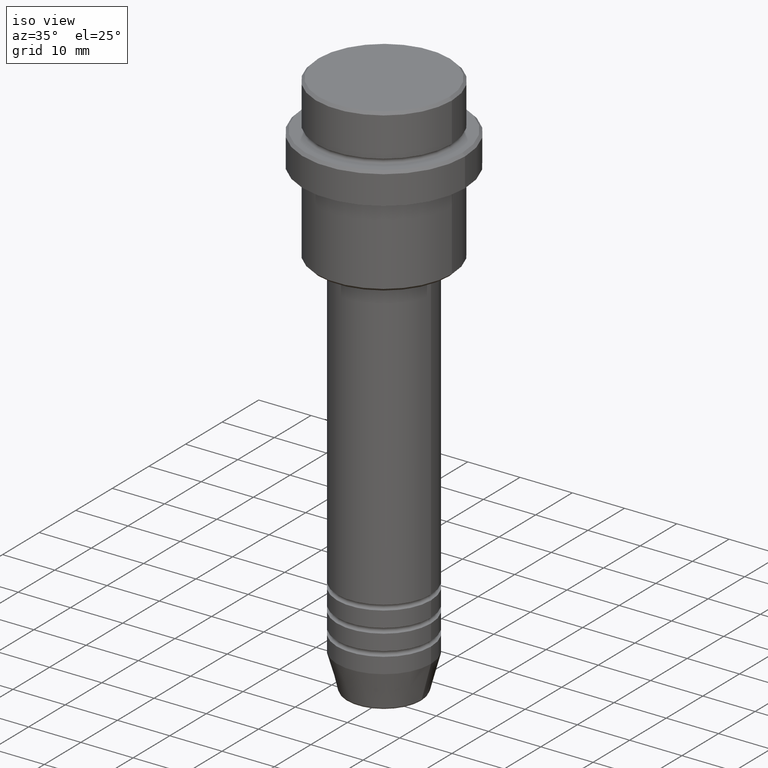
[diagram: clean part render]
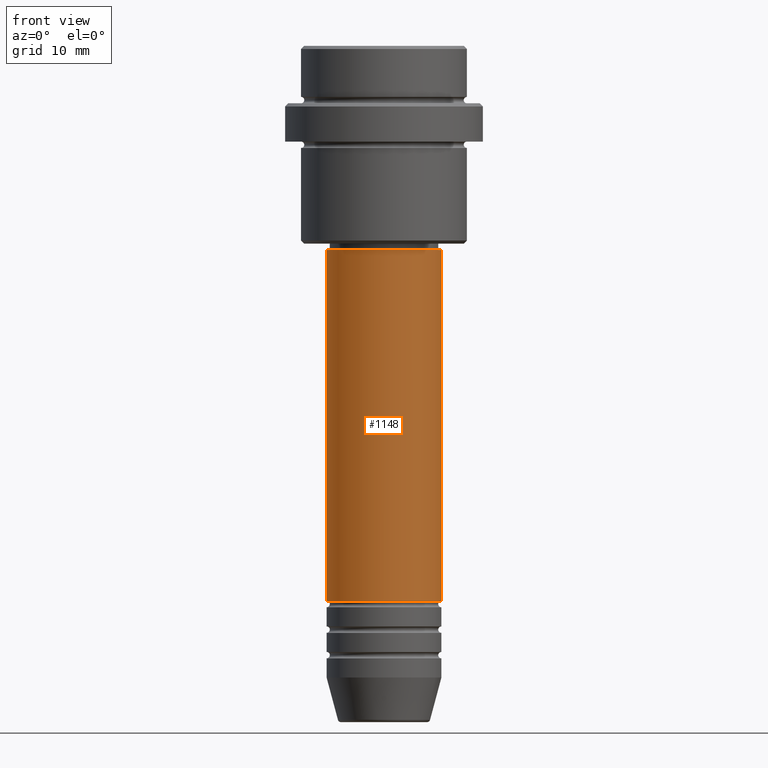
[diagram: tour spotlight — one face highlighted and labeled with its STEP entity id]
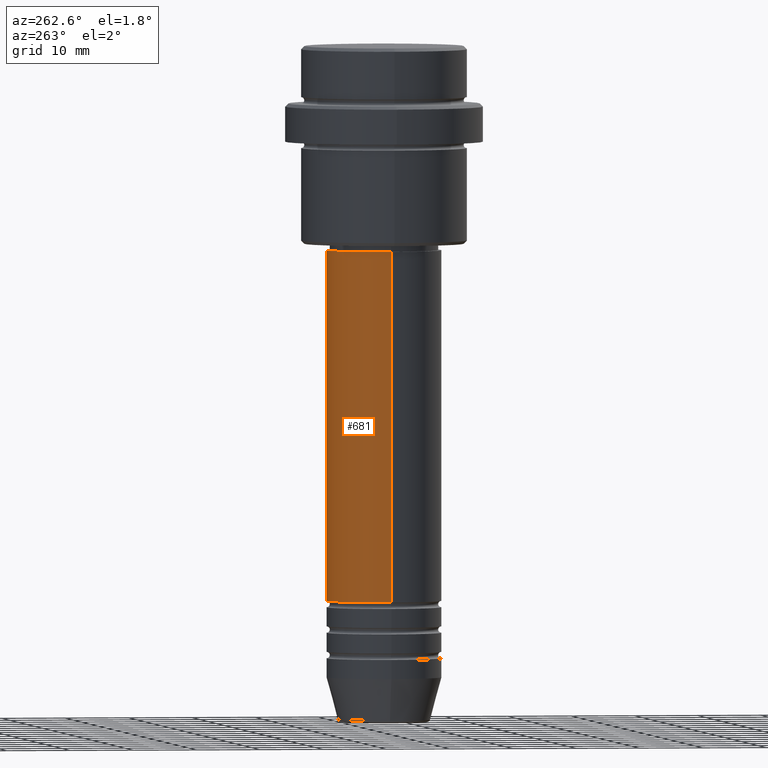
[diagram: tour spotlight — one face highlighted and labeled with its STEP entity id]
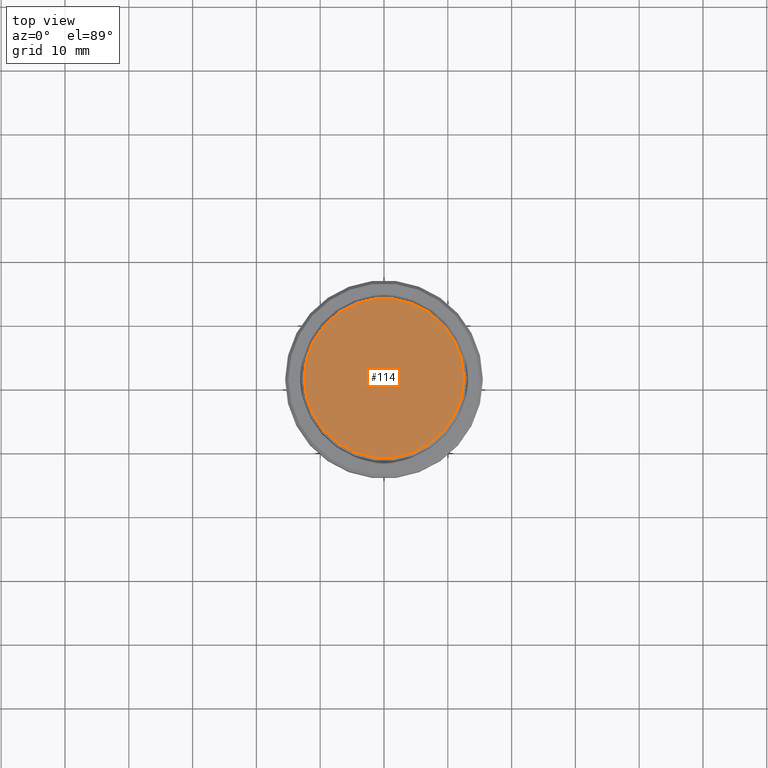
[diagram: tour spotlight — one face highlighted and labeled with its STEP entity id]
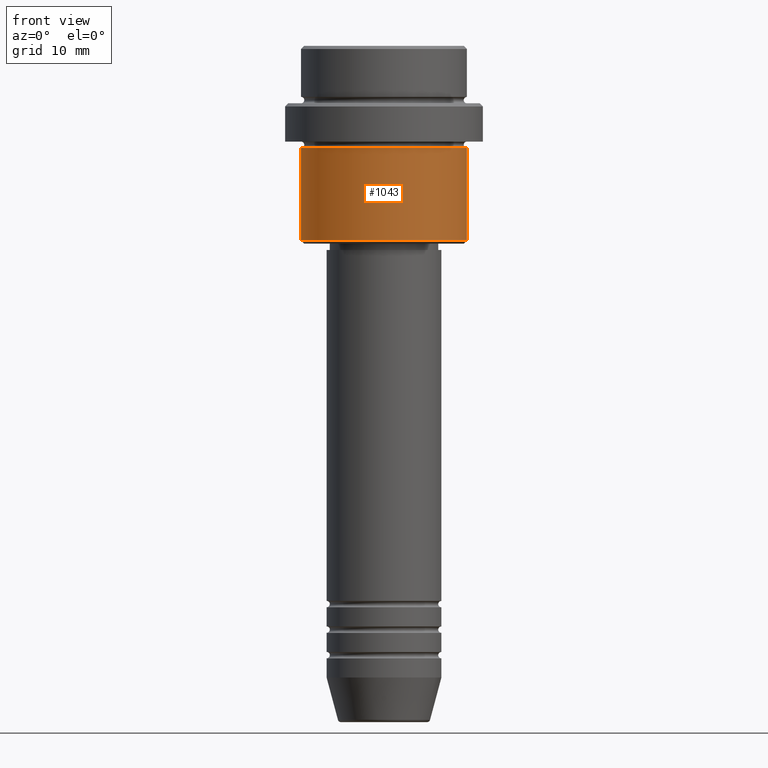
[diagram: tour spotlight — one face highlighted and labeled with its STEP entity id]
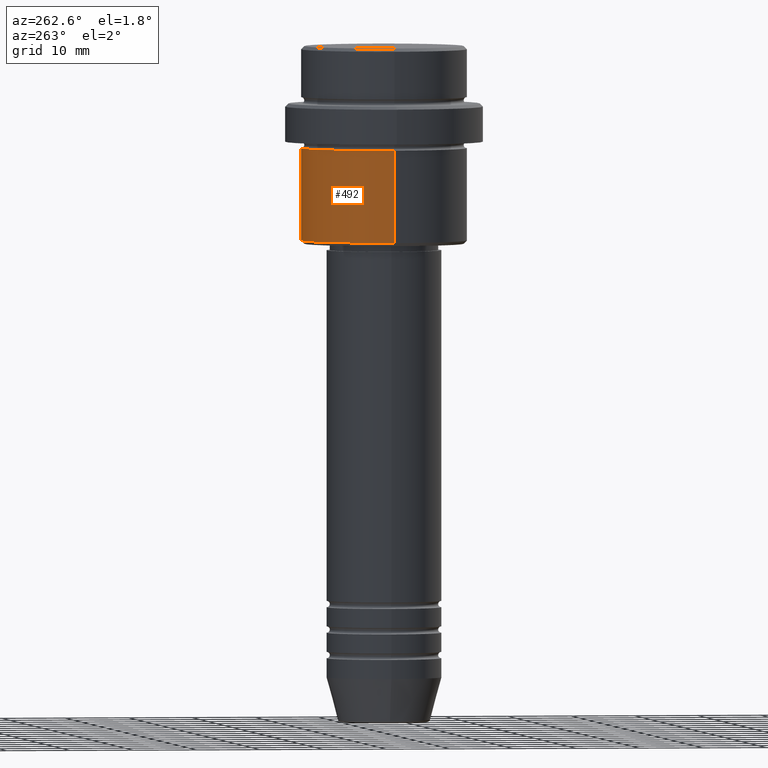
[diagram: tour spotlight — one face highlighted and labeled with its STEP entity id]
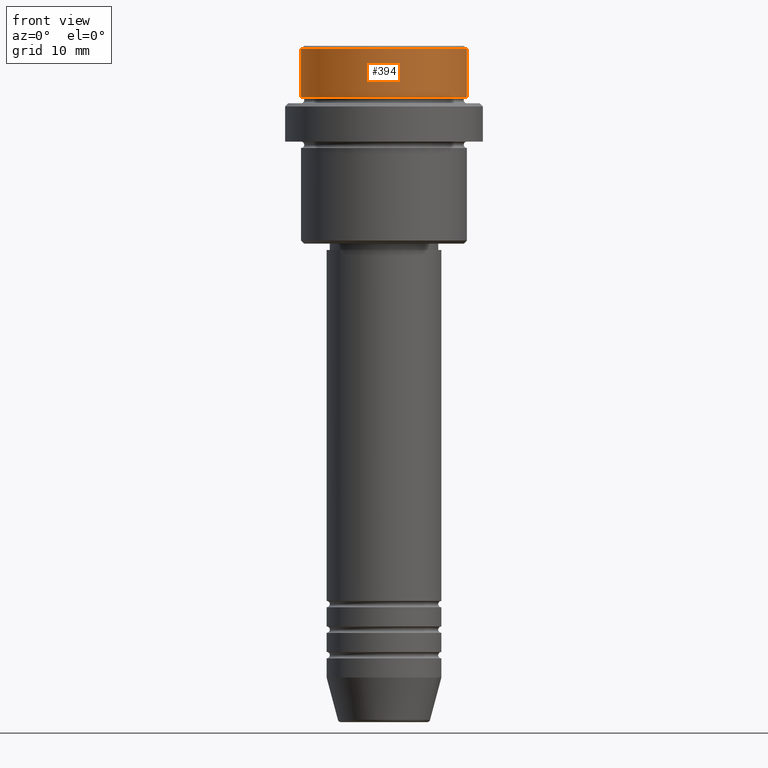
[diagram: tour spotlight — one face highlighted and labeled with its STEP entity id]
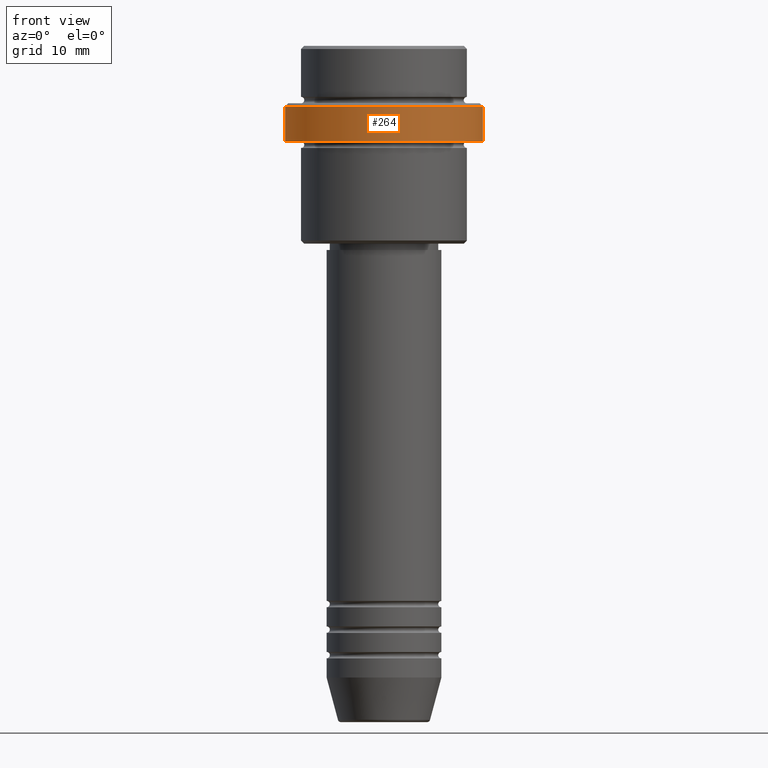
[diagram: tour spotlight — one face highlighted and labeled with its STEP entity id]
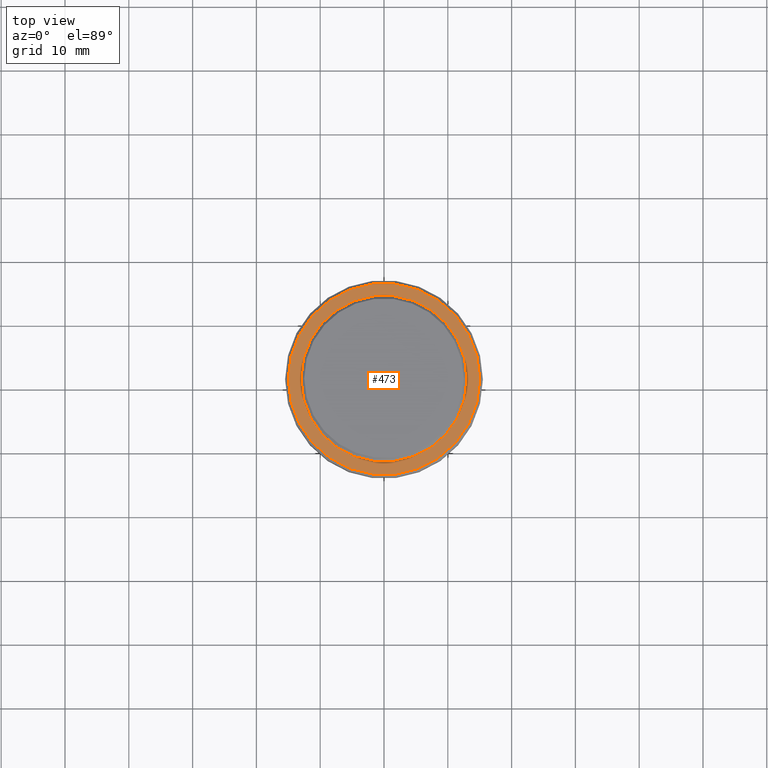
[diagram: tour spotlight — one face highlighted and labeled with its STEP entity id]
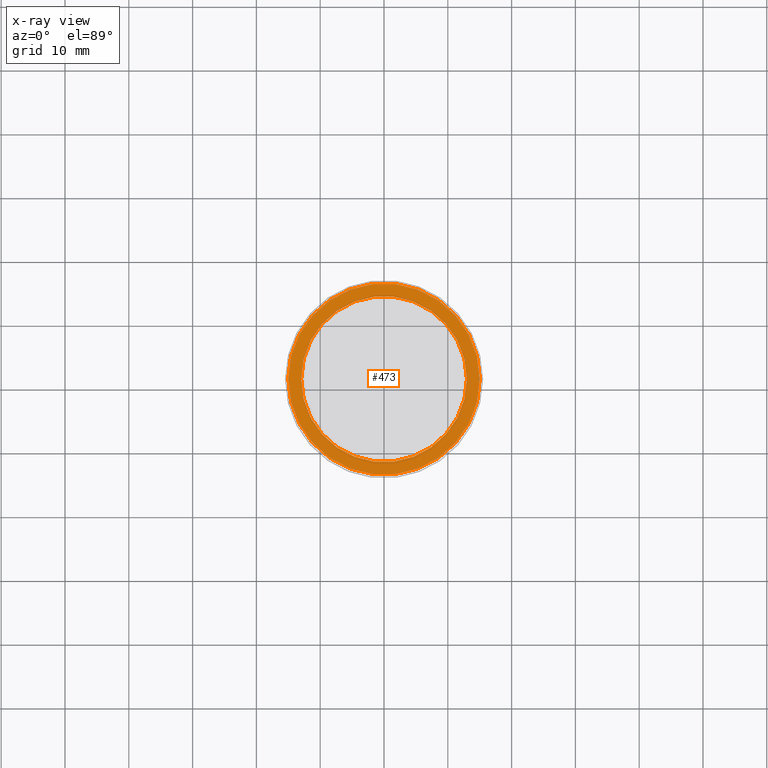
[diagram: x-ray of the same camera — body ghosted, this tour face saturated]
A machine part: a face-by-face anatomy tour. The part has 52 B-rep faces; the first image is the clean iso view, then the 8 largest visible faces are spotlighted one at a time (largest first), each with its STEP entity span.

Face 1 — front view, entity #1148. In plain terms, the highlighted cylindrical surface (partial cylindrical patch) has radius 9 mm, axis along (-0, -0, 1).
Definition (entity closure, byte-faithful):
#37 = EDGE_CURVE ( 'NONE', #289, #1263, #217, .T. ) ;
#52 = DIRECTION ( 'NONE',  ( -0.000000000000000000, -0.000000000000000000, 1.000000000000000000 ) ) ;
#82 = CARTESIAN_POINT ( 'NONE',  ( -9.000000000000001776, 1.102182119232617911E-15, 0.000000000000000000 ) ) ;
#92 = CIRCLE ( 'NONE', #529, 9.000000000000001776 ) ;
#217 = LINE ( 'NONE', #438, #707 ) ;
#227 = CARTESIAN_POINT ( 'NONE',  ( -9.000000000000001776, 1.102182119232617911E-15, -31.99999999999997868 ) ) ;
#274 = FACE_OUTER_BOUND ( 'NONE', #822, .T. ) ;
#289 = VERTEX_POINT ( 'NONE', #523 ) ;
#349 = EDGE_CURVE ( 'NONE', #933, #1263, #92, .T. ) ;
#400 = CARTESIAN_POINT ( 'NONE',  ( 0.000000000000000000, 0.000000000000000000, -86.99999999999988631 ) ) ;
#438 = CARTESIAN_POINT ( 'NONE',  ( 9.000000000000001776, 0.000000000000000000, 0.000000000000000000 ) ) ;
#516 = CYLINDRICAL_SURFACE ( 'NONE', #972, 9.000000000000001776 ) ;
#523 = CARTESIAN_POINT ( 'NONE',  ( 9.000000000000000000, 0.000000000000000000, -86.99999999999988631 ) ) ;
#529 = AXIS2_PLACEMENT_3D ( 'NONE', #857, #828, #960 ) ;
#638 = CARTESIAN_POINT ( 'NONE',  ( 9.000000000000001776, 0.000000000000000000, -31.99999999999997868 ) ) ;
#644 = CIRCLE ( 'NONE', #1318, 9.000000000000000000 ) ;
#666 = DIRECTION ( 'NONE',  ( -0.000000000000000000, -0.000000000000000000, 1.000000000000000000 ) ) ;
#701 = ORIENTED_EDGE ( 'NONE', *, *, #349, .F. ) ;
#707 = VECTOR ( 'NONE', #666, 1000.000000000000000 ) ;
#737 = LINE ( 'NONE', #82, #1173 ) ;
#792 = EDGE_CURVE ( 'NONE', #1093, #933, #737, .T. ) ;
#822 = EDGE_LOOP ( 'NONE', ( #1080, #1195, #1369, #701 ) ) ;
#828 = DIRECTION ( 'NONE',  ( -0.000000000000000000, -0.000000000000000000, 1.000000000000000000 ) ) ;
#842 = DIRECTION ( 'NONE',  ( -0.000000000000000000, -0.000000000000000000, 1.000000000000000000 ) ) ;
#857 = CARTESIAN_POINT ( 'NONE',  ( 0.000000000000000000, 0.000000000000000000, -31.99999999999997868 ) ) ;
#930 = CARTESIAN_POINT ( 'NONE',  ( 0.000000000000000000, 0.000000000000000000, 0.000000000000000000 ) ) ;
#933 = VERTEX_POINT ( 'NONE', #227 ) ;
#960 = DIRECTION ( 'NONE',  ( 1.000000000000000000, 0.000000000000000000, 0.000000000000000000 ) ) ;
#972 = AXIS2_PLACEMENT_3D ( 'NONE', #930, #1168, #1391 ) ;
#1080 = ORIENTED_EDGE ( 'NONE', *, *, #792, .F. ) ;
#1093 = VERTEX_POINT ( 'NONE', #1256 ) ;
#1148 = ADVANCED_FACE ( 'NONE', ( #274 ), #516, .T. ) ;
#1168 = DIRECTION ( 'NONE',  ( -0.000000000000000000, -0.000000000000000000, 1.000000000000000000 ) ) ;
#1173 = VECTOR ( 'NONE', #842, 1000.000000000000000 ) ;
#1195 = ORIENTED_EDGE ( 'NONE', *, *, #1196, .T. ) ;
#1196 = EDGE_CURVE ( 'NONE', #1093, #289, #644, .T. ) ;
#1256 = CARTESIAN_POINT ( 'NONE',  ( -9.000000000000000000, 1.102182119232617714E-15, -86.99999999999988631 ) ) ;
#1263 = VERTEX_POINT ( 'NONE', #638 ) ;
#1284 = DIRECTION ( 'NONE',  ( 1.000000000000000000, 0.000000000000000000, 0.000000000000000000 ) ) ;
#1318 = AXIS2_PLACEMENT_3D ( 'NONE', #400, #52, #1284 ) ;
#1369 = ORIENTED_EDGE ( 'NONE', *, *, #37, .T. ) ;
#1391 = DIRECTION ( 'NONE',  ( 1.000000000000000000, 0.000000000000000000, 0.000000000000000000 ) ) ;

Face 2 — auxiliary view, entity #681. In plain terms, the highlighted cylindrical surface (partial cylindrical patch) has radius 9 mm, axis along (-0, -0, 1).
Definition (entity closure, byte-faithful):
#1 = ORIENTED_EDGE ( 'NONE', *, *, #792, .T. ) ;
#6 = DIRECTION ( 'NONE',  ( 1.000000000000000000, 0.000000000000000000, 0.000000000000000000 ) ) ;
#23 = AXIS2_PLACEMENT_3D ( 'NONE', #976, #215, #6 ) ;
#37 = EDGE_CURVE ( 'NONE', #289, #1263, #217, .T. ) ;
#82 = CARTESIAN_POINT ( 'NONE',  ( -9.000000000000001776, 1.102182119232617911E-15, 0.000000000000000000 ) ) ;
#146 = ORIENTED_EDGE ( 'NONE', *, *, #37, .F. ) ;
#151 = DIRECTION ( 'NONE',  ( 1.000000000000000000, 0.000000000000000000, 0.000000000000000000 ) ) ;
#193 = DIRECTION ( 'NONE',  ( 1.000000000000000000, 0.000000000000000000, 0.000000000000000000 ) ) ;
#215 = DIRECTION ( 'NONE',  ( -0.000000000000000000, -0.000000000000000000, 1.000000000000000000 ) ) ;
#217 = LINE ( 'NONE', #438, #707 ) ;
#227 = CARTESIAN_POINT ( 'NONE',  ( -9.000000000000001776, 1.102182119232617911E-15, -31.99999999999997868 ) ) ;
#263 = DIRECTION ( 'NONE',  ( -0.000000000000000000, -0.000000000000000000, 1.000000000000000000 ) ) ;
#289 = VERTEX_POINT ( 'NONE', #523 ) ;
#438 = CARTESIAN_POINT ( 'NONE',  ( 9.000000000000001776, 0.000000000000000000, 0.000000000000000000 ) ) ;
#522 = CARTESIAN_POINT ( 'NONE',  ( 0.000000000000000000, 0.000000000000000000, 0.000000000000000000 ) ) ;
#523 = CARTESIAN_POINT ( 'NONE',  ( 9.000000000000000000, 0.000000000000000000, -86.99999999999988631 ) ) ;
#600 = CYLINDRICAL_SURFACE ( 'NONE', #874, 9.000000000000001776 ) ;
#607 = EDGE_LOOP ( 'NONE', ( #1299, #1, #1060, #146 ) ) ;
#638 = CARTESIAN_POINT ( 'NONE',  ( 9.000000000000001776, 0.000000000000000000, -31.99999999999997868 ) ) ;
#643 = CIRCLE ( 'NONE', #23, 9.000000000000000000 ) ;
#666 = DIRECTION ( 'NONE',  ( -0.000000000000000000, -0.000000000000000000, 1.000000000000000000 ) ) ;
#681 = ADVANCED_FACE ( 'NONE', ( #1143 ), #600, .T. ) ;
#692 = CIRCLE ( 'NONE', #1175, 9.000000000000001776 ) ;
#707 = VECTOR ( 'NONE', #666, 1000.000000000000000 ) ;
#737 = LINE ( 'NONE', #82, #1173 ) ;
#792 = EDGE_CURVE ( 'NONE', #1093, #933, #737, .T. ) ;
#842 = DIRECTION ( 'NONE',  ( -0.000000000000000000, -0.000000000000000000, 1.000000000000000000 ) ) ;
#844 = EDGE_CURVE ( 'NONE', #289, #1093, #643, .T. ) ;
#874 = AXIS2_PLACEMENT_3D ( 'NONE', #522, #1169, #193 ) ;
#933 = VERTEX_POINT ( 'NONE', #227 ) ;
#976 = CARTESIAN_POINT ( 'NONE',  ( 0.000000000000000000, 0.000000000000000000, -86.99999999999988631 ) ) ;
#1000 = EDGE_CURVE ( 'NONE', #1263, #933, #692, .T. ) ;
#1008 = CARTESIAN_POINT ( 'NONE',  ( 0.000000000000000000, 0.000000000000000000, -31.99999999999997868 ) ) ;
#1060 = ORIENTED_EDGE ( 'NONE', *, *, #1000, .F. ) ;
#1093 = VERTEX_POINT ( 'NONE', #1256 ) ;
#1143 = FACE_OUTER_BOUND ( 'NONE', #607, .T. ) ;
#1169 = DIRECTION ( 'NONE',  ( -0.000000000000000000, -0.000000000000000000, 1.000000000000000000 ) ) ;
#1173 = VECTOR ( 'NONE', #842, 1000.000000000000000 ) ;
#1175 = AXIS2_PLACEMENT_3D ( 'NONE', #1008, #263, #151 ) ;
#1256 = CARTESIAN_POINT ( 'NONE',  ( -9.000000000000000000, 1.102182119232617714E-15, -86.99999999999988631 ) ) ;
#1263 = VERTEX_POINT ( 'NONE', #638 ) ;
#1299 = ORIENTED_EDGE ( 'NONE', *, *, #844, .T. ) ;

Face 3 — top view, entity #114. In plain terms, the highlighted planar face has unit normal (0, -0, 1).
Definition (entity closure, byte-faithful):
#2 = AXIS2_PLACEMENT_3D ( 'NONE', #395, #295, #513 ) ;
#21 = CARTESIAN_POINT ( 'NONE',  ( -12.50000000000002665, 0.000000000000000000, 0.000000000000000000 ) ) ;
#114 = ADVANCED_FACE ( 'NONE', ( #339 ), #769, .T. ) ;
#200 = CARTESIAN_POINT ( 'NONE',  ( 12.50000000000002665, 1.561424668912876886E-15, 0.000000000000000000 ) ) ;
#213 = CIRCLE ( 'NONE', #1244, 12.50000000000002665 ) ;
#233 = AXIS2_PLACEMENT_3D ( 'NONE', #994, #1121, #804 ) ;
#281 = VERTEX_POINT ( 'NONE', #200 ) ;
#295 = DIRECTION ( 'NONE',  ( -0.000000000000000000, -0.000000000000000000, 1.000000000000000000 ) ) ;
#339 = FACE_OUTER_BOUND ( 'NONE', #1254, .T. ) ;
#378 = ORIENTED_EDGE ( 'NONE', *, *, #383, .T. ) ;
#383 = EDGE_CURVE ( 'NONE', #1020, #281, #572, .T. ) ;
#395 = CARTESIAN_POINT ( 'NONE',  ( 0.000000000000000000, 0.000000000000000000, 0.000000000000000000 ) ) ;
#513 = DIRECTION ( 'NONE',  ( 1.000000000000000000, 0.000000000000000000, 0.000000000000000000 ) ) ;
#542 = ORIENTED_EDGE ( 'NONE', *, *, #1045, .T. ) ;
#572 = CIRCLE ( 'NONE', #2, 12.50000000000002665 ) ;
#694 = DIRECTION ( 'NONE',  ( -0.000000000000000000, -0.000000000000000000, 1.000000000000000000 ) ) ;
#769 = PLANE ( 'NONE',  #233 ) ;
#804 = DIRECTION ( 'NONE',  ( 1.000000000000000000, 0.000000000000000000, 0.000000000000000000 ) ) ;
#994 = CARTESIAN_POINT ( 'NONE',  ( 0.000000000000000000, 0.000000000000000000, 0.000000000000000000 ) ) ;
#1003 = CARTESIAN_POINT ( 'NONE',  ( 0.000000000000000000, 0.000000000000000000, 0.000000000000000000 ) ) ;
#1020 = VERTEX_POINT ( 'NONE', #21 ) ;
#1045 = EDGE_CURVE ( 'NONE', #281, #1020, #213, .T. ) ;
#1121 = DIRECTION ( 'NONE',  ( 0.000000000000000000, -0.000000000000000000, 1.000000000000000000 ) ) ;
#1131 = DIRECTION ( 'NONE',  ( 1.000000000000000000, 0.000000000000000000, 0.000000000000000000 ) ) ;
#1244 = AXIS2_PLACEMENT_3D ( 'NONE', #1003, #694, #1131 ) ;
#1254 = EDGE_LOOP ( 'NONE', ( #378, #542 ) ) ;

Face 4 — front view, entity #1043. In plain terms, the highlighted cylindrical surface (partial cylindrical patch) has radius 13 mm, axis along (-0, -0, 1).
Definition (entity closure, byte-faithful):
#26 = VERTEX_POINT ( 'NONE', #1088 ) ;
#48 = CARTESIAN_POINT ( 'NONE',  ( 13.00000000000000000, 0.000000000000000000, 0.000000000000000000 ) ) ;
#74 = CARTESIAN_POINT ( 'NONE',  ( -13.00000000000000000, 1.592040838891559095E-15, -16.00000000000000000 ) ) ;
#176 = EDGE_CURVE ( 'NONE', #197, #786, #928, .T. ) ;
#197 = VERTEX_POINT ( 'NONE', #906 ) ;
#241 = EDGE_CURVE ( 'NONE', #26, #197, #1238, .T. ) ;
#246 = CYLINDRICAL_SURFACE ( 'NONE', #550, 13.00000000000000000 ) ;
#250 = CARTESIAN_POINT ( 'NONE',  ( 0.000000000000000000, 0.000000000000000000, 0.000000000000000000 ) ) ;
#467 = DIRECTION ( 'NONE',  ( -0.000000000000000000, -0.000000000000000000, 1.000000000000000000 ) ) ;
#469 = FACE_OUTER_BOUND ( 'NONE', #1306, .T. ) ;
#484 = CIRCLE ( 'NONE', #856, 13.00000000000000000 ) ;
#489 = DIRECTION ( 'NONE',  ( -1.000000000000000000, 0.000000000000000000, 0.000000000000000000 ) ) ;
#493 = CARTESIAN_POINT ( 'NONE',  ( 0.000000000000000000, 0.000000000000000000, -16.00000000000000000 ) ) ;
#535 = EDGE_CURVE ( 'NONE', #26, #1116, #803, .T. ) ;
#550 = AXIS2_PLACEMENT_3D ( 'NONE', #250, #893, #1237 ) ;
#586 = CARTESIAN_POINT ( 'NONE',  ( -13.00000000000000000, 1.592040838891559095E-15, 0.000000000000000000 ) ) ;
#588 = DIRECTION ( 'NONE',  ( -0.000000000000000000, -0.000000000000000000, 1.000000000000000000 ) ) ;
#687 = AXIS2_PLACEMENT_3D ( 'NONE', #815, #588, #489 ) ;
#786 = VERTEX_POINT ( 'NONE', #1392 ) ;
#803 = LINE ( 'NONE', #586, #832 ) ;
#815 = CARTESIAN_POINT ( 'NONE',  ( 0.000000000000000000, 0.000000000000000000, -30.49999999999997513 ) ) ;
#832 = VECTOR ( 'NONE', #1368, 1000.000000000000000 ) ;
#856 = AXIS2_PLACEMENT_3D ( 'NONE', #493, #1377, #1274 ) ;
#865 = ORIENTED_EDGE ( 'NONE', *, *, #176, .T. ) ;
#893 = DIRECTION ( 'NONE',  ( -0.000000000000000000, -0.000000000000000000, 1.000000000000000000 ) ) ;
#906 = CARTESIAN_POINT ( 'NONE',  ( 13.00000000000000000, 0.000000000000000000, -30.49999999999997513 ) ) ;
#928 = LINE ( 'NONE', #48, #1335 ) ;
#941 = ORIENTED_EDGE ( 'NONE', *, *, #535, .F. ) ;
#1043 = ADVANCED_FACE ( 'NONE', ( #469 ), #246, .T. ) ;
#1088 = CARTESIAN_POINT ( 'NONE',  ( -13.00000000000000000, 1.592040838891559095E-15, -30.49999999999997513 ) ) ;
#1116 = VERTEX_POINT ( 'NONE', #74 ) ;
#1144 = EDGE_CURVE ( 'NONE', #1116, #786, #484, .T. ) ;
#1166 = ORIENTED_EDGE ( 'NONE', *, *, #1144, .F. ) ;
#1237 = DIRECTION ( 'NONE',  ( 1.000000000000000000, 0.000000000000000000, 0.000000000000000000 ) ) ;
#1238 = CIRCLE ( 'NONE', #687, 13.00000000000000000 ) ;
#1274 = DIRECTION ( 'NONE',  ( 1.000000000000000000, 0.000000000000000000, 0.000000000000000000 ) ) ;
#1306 = EDGE_LOOP ( 'NONE', ( #941, #1390, #865, #1166 ) ) ;
#1335 = VECTOR ( 'NONE', #467, 1000.000000000000000 ) ;
#1368 = DIRECTION ( 'NONE',  ( -0.000000000000000000, -0.000000000000000000, 1.000000000000000000 ) ) ;
#1377 = DIRECTION ( 'NONE',  ( -0.000000000000000000, -0.000000000000000000, 1.000000000000000000 ) ) ;
#1390 = ORIENTED_EDGE ( 'NONE', *, *, #241, .T. ) ;
#1392 = CARTESIAN_POINT ( 'NONE',  ( 13.00000000000000000, 0.000000000000000000, -16.00000000000000000 ) ) ;

Face 5 — auxiliary view, entity #492. In plain terms, the highlighted cylindrical surface (partial cylindrical patch) has radius 13 mm, axis along (-0, -0, 1).
Definition (entity closure, byte-faithful):
#8 = DIRECTION ( 'NONE',  ( 1.000000000000000000, 0.000000000000000000, 0.000000000000000000 ) ) ;
#22 = CIRCLE ( 'NONE', #118, 13.00000000000000000 ) ;
#26 = VERTEX_POINT ( 'NONE', #1088 ) ;
#48 = CARTESIAN_POINT ( 'NONE',  ( 13.00000000000000000, 0.000000000000000000, 0.000000000000000000 ) ) ;
#74 = CARTESIAN_POINT ( 'NONE',  ( -13.00000000000000000, 1.592040838891559095E-15, -16.00000000000000000 ) ) ;
#118 = AXIS2_PLACEMENT_3D ( 'NONE', #695, #1232, #1010 ) ;
#139 = AXIS2_PLACEMENT_3D ( 'NONE', #981, #1417, #1321 ) ;
#150 = ORIENTED_EDGE ( 'NONE', *, *, #176, .F. ) ;
#176 = EDGE_CURVE ( 'NONE', #197, #786, #928, .T. ) ;
#197 = VERTEX_POINT ( 'NONE', #906 ) ;
#436 = DIRECTION ( 'NONE',  ( -0.000000000000000000, -0.000000000000000000, 1.000000000000000000 ) ) ;
#467 = DIRECTION ( 'NONE',  ( -0.000000000000000000, -0.000000000000000000, 1.000000000000000000 ) ) ;
#492 = ADVANCED_FACE ( 'NONE', ( #863 ), #650, .T. ) ;
#508 = EDGE_CURVE ( 'NONE', #197, #26, #1239, .T. ) ;
#534 = EDGE_CURVE ( 'NONE', #786, #1116, #22, .T. ) ;
#535 = EDGE_CURVE ( 'NONE', #26, #1116, #803, .T. ) ;
#541 = CARTESIAN_POINT ( 'NONE',  ( 0.000000000000000000, 0.000000000000000000, 0.000000000000000000 ) ) ;
#586 = CARTESIAN_POINT ( 'NONE',  ( -13.00000000000000000, 1.592040838891559095E-15, 0.000000000000000000 ) ) ;
#650 = CYLINDRICAL_SURFACE ( 'NONE', #853, 13.00000000000000000 ) ;
#695 = CARTESIAN_POINT ( 'NONE',  ( 0.000000000000000000, 0.000000000000000000, -16.00000000000000000 ) ) ;
#752 = EDGE_LOOP ( 'NONE', ( #1327, #1190, #1414, #150 ) ) ;
#786 = VERTEX_POINT ( 'NONE', #1392 ) ;
#803 = LINE ( 'NONE', #586, #832 ) ;
#832 = VECTOR ( 'NONE', #1368, 1000.000000000000000 ) ;
#853 = AXIS2_PLACEMENT_3D ( 'NONE', #541, #436, #8 ) ;
#863 = FACE_OUTER_BOUND ( 'NONE', #752, .T. ) ;
#906 = CARTESIAN_POINT ( 'NONE',  ( 13.00000000000000000, 0.000000000000000000, -30.49999999999997513 ) ) ;
#928 = LINE ( 'NONE', #48, #1335 ) ;
#981 = CARTESIAN_POINT ( 'NONE',  ( 0.000000000000000000, 0.000000000000000000, -30.49999999999997513 ) ) ;
#1010 = DIRECTION ( 'NONE',  ( 1.000000000000000000, 0.000000000000000000, 0.000000000000000000 ) ) ;
#1088 = CARTESIAN_POINT ( 'NONE',  ( -13.00000000000000000, 1.592040838891559095E-15, -30.49999999999997513 ) ) ;
#1116 = VERTEX_POINT ( 'NONE', #74 ) ;
#1190 = ORIENTED_EDGE ( 'NONE', *, *, #535, .T. ) ;
#1232 = DIRECTION ( 'NONE',  ( -0.000000000000000000, -0.000000000000000000, 1.000000000000000000 ) ) ;
#1239 = CIRCLE ( 'NONE', #139, 13.00000000000000000 ) ;
#1321 = DIRECTION ( 'NONE',  ( -1.000000000000000000, 0.000000000000000000, 0.000000000000000000 ) ) ;
#1327 = ORIENTED_EDGE ( 'NONE', *, *, #508, .T. ) ;
#1335 = VECTOR ( 'NONE', #467, 1000.000000000000000 ) ;
#1368 = DIRECTION ( 'NONE',  ( -0.000000000000000000, -0.000000000000000000, 1.000000000000000000 ) ) ;
#1392 = CARTESIAN_POINT ( 'NONE',  ( 13.00000000000000000, 0.000000000000000000, -16.00000000000000000 ) ) ;
#1414 = ORIENTED_EDGE ( 'NONE', *, *, #534, .F. ) ;
#1417 = DIRECTION ( 'NONE',  ( -0.000000000000000000, -0.000000000000000000, 1.000000000000000000 ) ) ;

Face 6 — front view, entity #394. In plain terms, the highlighted cylindrical surface (partial cylindrical patch) has radius 13 mm, axis along (-0, -0, 1).
Definition (entity closure, byte-faithful):
#106 = CARTESIAN_POINT ( 'NONE',  ( 12.99999999999999822, 0.000000000000000000, -0.4999999999999622524 ) ) ;
#113 = FACE_OUTER_BOUND ( 'NONE', #1184, .T. ) ;
#135 = CARTESIAN_POINT ( 'NONE',  ( -12.99999999999999822, 1.592040838891558898E-15, 0.000000000000000000 ) ) ;
#192 = DIRECTION ( 'NONE',  ( 1.000000000000000000, 0.000000000000000000, 0.000000000000000000 ) ) ;
#229 = DIRECTION ( 'NONE',  ( -0.000000000000000000, -0.000000000000000000, 1.000000000000000000 ) ) ;
#237 = CARTESIAN_POINT ( 'NONE',  ( 12.99999999999999822, 0.000000000000000000, 0.000000000000000000 ) ) ;
#239 = CARTESIAN_POINT ( 'NONE',  ( 0.000000000000000000, 0.000000000000000000, 0.000000000000000000 ) ) ;
#276 = AXIS2_PLACEMENT_3D ( 'NONE', #239, #229, #889 ) ;
#299 = CARTESIAN_POINT ( 'NONE',  ( 0.000000000000000000, 0.000000000000000000, -7.999999999999998224 ) ) ;
#305 = CIRCLE ( 'NONE', #900, 12.99999999999999822 ) ;
#306 = VECTOR ( 'NONE', #589, 1000.000000000000000 ) ;
#309 = CARTESIAN_POINT ( 'NONE',  ( -12.99999999999999822, 1.592040838891558898E-15, -0.4999999999999622524 ) ) ;
#314 = ORIENTED_EDGE ( 'NONE', *, *, #1213, .T. ) ;
#326 = CYLINDRICAL_SURFACE ( 'NONE', #276, 12.99999999999999822 ) ;
#334 = VECTOR ( 'NONE', #476, 1000.000000000000000 ) ;
#394 = ADVANCED_FACE ( 'NONE', ( #113 ), #326, .T. ) ;
#443 = CIRCLE ( 'NONE', #672, 12.99999999999999822 ) ;
#476 = DIRECTION ( 'NONE',  ( -0.000000000000000000, -0.000000000000000000, 1.000000000000000000 ) ) ;
#536 = DIRECTION ( 'NONE',  ( 0.000000000000000000, 0.000000000000000000, -1.000000000000000000 ) ) ;
#589 = DIRECTION ( 'NONE',  ( -0.000000000000000000, -0.000000000000000000, 1.000000000000000000 ) ) ;
#672 = AXIS2_PLACEMENT_3D ( 'NONE', #299, #732, #192 ) ;
#674 = CARTESIAN_POINT ( 'NONE',  ( 12.99999999999999822, 0.000000000000000000, -7.999999999999998224 ) ) ;
#676 = ORIENTED_EDGE ( 'NONE', *, *, #818, .T. ) ;
#716 = VERTEX_POINT ( 'NONE', #936 ) ;
#732 = DIRECTION ( 'NONE',  ( -0.000000000000000000, -0.000000000000000000, 1.000000000000000000 ) ) ;
#818 = EDGE_CURVE ( 'NONE', #885, #1277, #305, .T. ) ;
#885 = VERTEX_POINT ( 'NONE', #106 ) ;
#889 = DIRECTION ( 'NONE',  ( 1.000000000000000000, 0.000000000000000000, 0.000000000000000000 ) ) ;
#900 = AXIS2_PLACEMENT_3D ( 'NONE', #1207, #536, #1084 ) ;
#904 = LINE ( 'NONE', #135, #334 ) ;
#936 = CARTESIAN_POINT ( 'NONE',  ( -12.99999999999999822, 1.592040838891558898E-15, -7.999999999999998224 ) ) ;
#955 = ORIENTED_EDGE ( 'NONE', *, *, #1046, .T. ) ;
#982 = EDGE_CURVE ( 'NONE', #716, #1277, #904, .T. ) ;
#1016 = LINE ( 'NONE', #237, #306 ) ;
#1046 = EDGE_CURVE ( 'NONE', #1052, #885, #1016, .T. ) ;
#1052 = VERTEX_POINT ( 'NONE', #674 ) ;
#1084 = DIRECTION ( 'NONE',  ( 1.000000000000000000, 0.000000000000000000, 0.000000000000000000 ) ) ;
#1184 = EDGE_LOOP ( 'NONE', ( #1252, #314, #955, #676 ) ) ;
#1207 = CARTESIAN_POINT ( 'NONE',  ( 0.000000000000000000, 0.000000000000000000, -0.4999999999999622524 ) ) ;
#1213 = EDGE_CURVE ( 'NONE', #716, #1052, #443, .T. ) ;
#1252 = ORIENTED_EDGE ( 'NONE', *, *, #982, .F. ) ;
#1277 = VERTEX_POINT ( 'NONE', #309 ) ;

Face 7 — front view, entity #264. In plain terms, the highlighted cylindrical surface (partial cylindrical patch) has radius 15.5 mm, axis along (-0, -0, 1).
Definition (entity closure, byte-faithful):
#54 = CYLINDRICAL_SURFACE ( 'NONE', #117, 15.50000000000000000 ) ;
#59 = CARTESIAN_POINT ( 'NONE',  ( -15.50000000000000000, 1.898202538678397557E-15, 0.000000000000000000 ) ) ;
#72 = CIRCLE ( 'NONE', #1085, 15.50000000000000000 ) ;
#117 = AXIS2_PLACEMENT_3D ( 'NONE', #1342, #279, #838 ) ;
#181 = LINE ( 'NONE', #59, #965 ) ;
#184 = CARTESIAN_POINT ( 'NONE',  ( -15.50000000000000000, 1.898202538678397557E-15, -15.00000000000000178 ) ) ;
#256 = AXIS2_PLACEMENT_3D ( 'NONE', #620, #1268, #1065 ) ;
#264 = ADVANCED_FACE ( 'NONE', ( #1041 ), #54, .T. ) ;
#273 = VERTEX_POINT ( 'NONE', #1394 ) ;
#279 = DIRECTION ( 'NONE',  ( -0.000000000000000000, -0.000000000000000000, 1.000000000000000000 ) ) ;
#328 = VERTEX_POINT ( 'NONE', #717 ) ;
#329 = EDGE_CURVE ( 'NONE', #641, #273, #181, .T. ) ;
#347 = DIRECTION ( 'NONE',  ( -0.000000000000000000, -0.000000000000000000, 1.000000000000000000 ) ) ;
#381 = ORIENTED_EDGE ( 'NONE', *, *, #1091, .T. ) ;
#388 = DIRECTION ( 'NONE',  ( -0.000000000000000000, -0.000000000000000000, 1.000000000000000000 ) ) ;
#540 = CARTESIAN_POINT ( 'NONE',  ( 15.50000000000000000, 0.000000000000000000, 0.000000000000000000 ) ) ;
#561 = CARTESIAN_POINT ( 'NONE',  ( 0.000000000000000000, 0.000000000000000000, -15.00000000000000178 ) ) ;
#576 = VECTOR ( 'NONE', #1212, 1000.000000000000000 ) ;
#620 = CARTESIAN_POINT ( 'NONE',  ( 0.000000000000000000, 0.000000000000000000, -9.500000000000040856 ) ) ;
#630 = VERTEX_POINT ( 'NONE', #1258 ) ;
#641 = VERTEX_POINT ( 'NONE', #184 ) ;
#684 = EDGE_CURVE ( 'NONE', #630, #273, #1034, .T. ) ;
#717 = CARTESIAN_POINT ( 'NONE',  ( 15.50000000000000000, 0.000000000000000000, -15.00000000000000178 ) ) ;
#812 = ORIENTED_EDGE ( 'NONE', *, *, #329, .F. ) ;
#838 = DIRECTION ( 'NONE',  ( 1.000000000000000000, 0.000000000000000000, 0.000000000000000000 ) ) ;
#922 = EDGE_CURVE ( 'NONE', #328, #630, #1200, .T. ) ;
#958 = EDGE_LOOP ( 'NONE', ( #812, #381, #959, #1164 ) ) ;
#959 = ORIENTED_EDGE ( 'NONE', *, *, #922, .T. ) ;
#965 = VECTOR ( 'NONE', #388, 1000.000000000000000 ) ;
#1034 = CIRCLE ( 'NONE', #256, 15.50000000000000000 ) ;
#1041 = FACE_OUTER_BOUND ( 'NONE', #958, .T. ) ;
#1065 = DIRECTION ( 'NONE',  ( 1.000000000000000000, 0.000000000000000000, 0.000000000000000000 ) ) ;
#1085 = AXIS2_PLACEMENT_3D ( 'NONE', #561, #347, #1114 ) ;
#1091 = EDGE_CURVE ( 'NONE', #641, #328, #72, .T. ) ;
#1114 = DIRECTION ( 'NONE',  ( 1.000000000000000000, 0.000000000000000000, 0.000000000000000000 ) ) ;
#1164 = ORIENTED_EDGE ( 'NONE', *, *, #684, .T. ) ;
#1200 = LINE ( 'NONE', #540, #576 ) ;
#1212 = DIRECTION ( 'NONE',  ( -0.000000000000000000, -0.000000000000000000, 1.000000000000000000 ) ) ;
#1258 = CARTESIAN_POINT ( 'NONE',  ( 15.50000000000000000, 0.000000000000000000, -9.500000000000040856 ) ) ;
#1268 = DIRECTION ( 'NONE',  ( 0.000000000000000000, 0.000000000000000000, -1.000000000000000000 ) ) ;
#1342 = CARTESIAN_POINT ( 'NONE',  ( 0.000000000000000000, 0.000000000000000000, 0.000000000000000000 ) ) ;
#1394 = CARTESIAN_POINT ( 'NONE',  ( -15.50000000000000000, 1.898202538678397557E-15, -9.500000000000040856 ) ) ;

Face 8 — top view, entity #473. An x-ray twin of the same camera follows (body ghosted, this face saturated) — the face is partly hidden behind the body. In plain terms, the highlighted planar face has unit normal (0, -0, 1).
Definition (entity closure, byte-faithful):
#27 = AXIS2_PLACEMENT_3D ( 'NONE', #1409, #525, #866 ) ;
#123 = AXIS2_PLACEMENT_3D ( 'NONE', #720, #1267, #833 ) ;
#179 = VERTEX_POINT ( 'NONE', #1126 ) ;
#208 = VERTEX_POINT ( 'NONE', #797 ) ;
#224 = ORIENTED_EDGE ( 'NONE', *, *, #1348, .T. ) ;
#234 = AXIS2_PLACEMENT_3D ( 'NONE', #1115, #1095, #345 ) ;
#345 = DIRECTION ( 'NONE',  ( 1.000000000000000000, 0.000000000000000000, 0.000000000000000000 ) ) ;
#428 = CARTESIAN_POINT ( 'NONE',  ( 0.000000000000000000, 12.49999999999999289, -9.000000000000001776 ) ) ;
#454 = EDGE_CURVE ( 'NONE', #208, #179, #546, .T. ) ;
#473 = ADVANCED_FACE ( 'NONE', ( #657, #1407 ), #977, .T. ) ;
#525 = DIRECTION ( 'NONE',  ( 0.000000000000000000, 0.000000000000000000, -1.000000000000000000 ) ) ;
#546 = CIRCLE ( 'NONE', #234, 12.99999999999999467 ) ;
#602 = VERTEX_POINT ( 'NONE', #1004 ) ;
#622 = VERTEX_POINT ( 'NONE', #905 ) ;
#657 = FACE_OUTER_BOUND ( 'NONE', #816, .T. ) ;
#689 = AXIS2_PLACEMENT_3D ( 'NONE', #428, #1100, #780 ) ;
#720 = CARTESIAN_POINT ( 'NONE',  ( 0.000000000000000000, 0.000000000000000000, -9.000000000000001776 ) ) ;
#758 = ORIENTED_EDGE ( 'NONE', *, *, #454, .T. ) ;
#780 = DIRECTION ( 'NONE',  ( 1.000000000000000000, 0.000000000000000000, 0.000000000000000000 ) ) ;
#797 = CARTESIAN_POINT ( 'NONE',  ( 12.99999999999999467, 0.000000000000000000, -9.000000000000001776 ) ) ;
#816 = EDGE_LOOP ( 'NONE', ( #953, #224 ) ) ;
#833 = DIRECTION ( 'NONE',  ( 1.000000000000000000, 0.000000000000000000, 0.000000000000000000 ) ) ;
#866 = DIRECTION ( 'NONE',  ( 1.000000000000000000, 0.000000000000000000, 0.000000000000000000 ) ) ;
#905 = CARTESIAN_POINT ( 'NONE',  ( 14.99999999999995737, 1.867586368699711009E-15, -9.000000000000001776 ) ) ;
#951 = ORIENTED_EDGE ( 'NONE', *, *, #1330, .T. ) ;
#953 = ORIENTED_EDGE ( 'NONE', *, *, #1222, .T. ) ;
#974 = CIRCLE ( 'NONE', #27, 12.99999999999999467 ) ;
#977 = PLANE ( 'NONE',  #689 ) ;
#993 = CIRCLE ( 'NONE', #123, 14.99999999999995737 ) ;
#1004 = CARTESIAN_POINT ( 'NONE',  ( -14.99999999999995737, 0.000000000000000000, -9.000000000000001776 ) ) ;
#1037 = AXIS2_PLACEMENT_3D ( 'NONE', #1188, #1316, #1206 ) ;
#1095 = DIRECTION ( 'NONE',  ( 0.000000000000000000, 0.000000000000000000, -1.000000000000000000 ) ) ;
#1100 = DIRECTION ( 'NONE',  ( 0.000000000000000000, -0.000000000000000000, 1.000000000000000000 ) ) ;
#1115 = CARTESIAN_POINT ( 'NONE',  ( 0.000000000000000000, 0.000000000000000000, -9.000000000000001776 ) ) ;
#1126 = CARTESIAN_POINT ( 'NONE',  ( -12.99999999999999467, 1.592040838891558504E-15, -9.000000000000001776 ) ) ;
#1188 = CARTESIAN_POINT ( 'NONE',  ( 0.000000000000000000, 0.000000000000000000, -9.000000000000001776 ) ) ;
#1206 = DIRECTION ( 'NONE',  ( 1.000000000000000000, 0.000000000000000000, 0.000000000000000000 ) ) ;
#1222 = EDGE_CURVE ( 'NONE', #602, #622, #993, .T. ) ;
#1246 = CIRCLE ( 'NONE', #1037, 14.99999999999995737 ) ;
#1267 = DIRECTION ( 'NONE',  ( -0.000000000000000000, -0.000000000000000000, 1.000000000000000000 ) ) ;
#1307 = EDGE_LOOP ( 'NONE', ( #758, #951 ) ) ;
#1316 = DIRECTION ( 'NONE',  ( -0.000000000000000000, -0.000000000000000000, 1.000000000000000000 ) ) ;
#1330 = EDGE_CURVE ( 'NONE', #179, #208, #974, .T. ) ;
#1348 = EDGE_CURVE ( 'NONE', #622, #602, #1246, .T. ) ;
#1407 = FACE_BOUND ( 'NONE', #1307, .T. ) ;
#1409 = CARTESIAN_POINT ( 'NONE',  ( 0.000000000000000000, 0.000000000000000000, -9.000000000000001776 ) ) ;